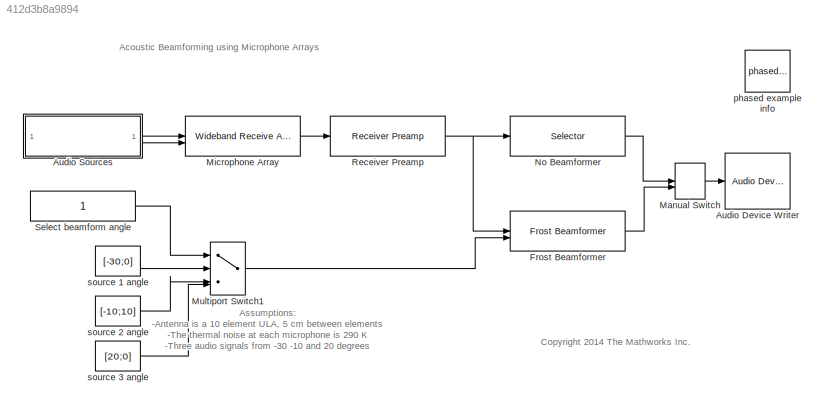
MODEL slx_412d3b8a9894
KIND model
CONFIG AbsTol = auto
CONFIG EnableMultiTasking = on
CONFIG FixedStep = auto
CONFIG MaxStep = auto
CONFIG MinStep = auto
CONFIG RelTol = 1e-3
CONFIG SampleTimeConstraint = Unconstrained
CONFIG SolverName = FixedStepDiscrete
CONFIG StartTime = 0.0
CONFIG StopTime = inf
BLOCK [Reference] Audio Device Writer  REF=dspsnks4/Audio Device
Writer
  SourceBlock = dspsnks4/Audio Device\nWriter
  SourceType = Audio Device Writer
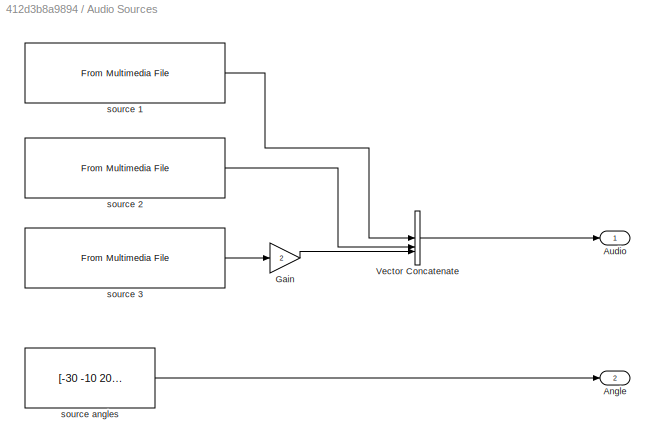
BLOCK [SubSystem] Audio Sources
BLOCK [Outport] Audio Sources/Angle
  Port = 2
  VectorParamsAs1DForOutWhenUnconnected = off
BLOCK [Outport] Audio Sources/Audio
  VectorParamsAs1DForOutWhenUnconnected = off
BLOCK [Gain] Audio Sources/Gain
  Gain = 2
BLOCK [Concatenate] Audio Sources/Vector Concatenate
  ConcatenateDimension = 2
  Mode = Multidimensional array
  NumInputs = 3
BLOCK [Reference] Audio Sources/source 1  REF=dspvision/From Multimedia File
  SourceBlock = dspvision/From Multimedia File
  SourceType = From Multimedia File
BLOCK [Reference] Audio Sources/source 2  REF=dspvision/From Multimedia File
  SourceBlock = dspvision/From Multimedia File
  SourceType = From Multimedia File
BLOCK [Reference] Audio Sources/source 3  REF=dspvision/From Multimedia File
  SourceBlock = dspvision/From Multimedia File
  SourceType = From Multimedia File
BLOCK [Constant] Audio Sources/source angles
  Value = [-30 -10 20;0 10 0]
BLOCK [Reference] Frost Beamformer  REF=phasedbflib/Frost Beamformer
  SourceBlock = phasedbflib/Frost Beamformer
  SourceType = phased.FrostBeamformer
BLOCK [ManualSwitch] Manual Switch
BLOCK [Reference] Microphone Array  REF=phasedtxrxlib/Wideband Receive Array
  SourceBlock = phasedtxrxlib/Wideband Receive Array
  SourceType = phased.WidebandCollector
BLOCK [MultiPortSwitch] Multiport Switch1
  InputSameDT = off
  SaturateOnIntegerOverflow = off
BLOCK [Selector] No Beamformer
  IndexOptions = Select all,Index vector (dialog)
  Indices = [1 3],5
  InputPortWidth = 3
  NumberOfDimensions = 2
  OutputSizes = 1,1
BLOCK [Reference] Receiver Preamp  REF=phasedtxrxlib/Receiver Preamp
  SourceBlock = phasedtxrxlib/Receiver Preamp
  SourceType = phased.internal.SimulinkReceiverPreamp
BLOCK [Constant] Select beamform angle
BLOCK [Reference] phased example info  REF=phasedmisclib/phased example info
  SourceBlock = phasedmisclib/phased example info
BLOCK [Constant] source 1 angle
  Value = [-30;0]
BLOCK [Constant] source 2 angle
  Value = [-10;10]
BLOCK [Constant] source 3 angle
  Value = [20;0]
ANNOTATION (root): Acoustic Beamforming using Microphone Arrays
ANNOTATION (root): Assumptions : -Antenna is a 10 element ULA, 5 cm between elements -The thermal noise at each microphone is 290 K -Three audio signals from -30 -10 and 20 degrees
ANNOTATION (root): <copyright redacted>
LINE Audio Sources/Gain:1 -> Audio Sources/Vector Concatenate:3
LINE Audio Sources/Vector Concatenate:1 -> Audio Sources/Audio:1
LINE Audio Sources/source 1:1 -> Audio Sources/Vector Concatenate:1
LINE Audio Sources/source 2:1 -> Audio Sources/Vector Concatenate:2
LINE Audio Sources/source 3:1 -> Audio Sources/Gain:1
LINE Audio Sources/source angles:1 -> Audio Sources/Angle:1
LINE Audio Sources:1 -> Microphone Array:1
LINE Audio Sources:2 -> Microphone Array:2
LINE Frost Beamformer:1 -> Manual Switch:2
LINE Manual Switch:1 -> Audio Device Writer:1
LINE Microphone Array:1 -> Receiver Preamp:1
LINE Multiport Switch1:1 -> Frost Beamformer:2
LINE No Beamformer:1 -> Manual Switch:1
NET Receiver Preamp:1 -> Frost Beamformer:1, No Beamformer:1
LINE Select beamform angle:1 -> Multiport Switch1:1
LINE source 1 angle:1 -> Multiport Switch1:2
LINE source 2 angle:1 -> Multiport Switch1:3
LINE source 3 angle:1 -> Multiport Switch1:4
note: NET lines group one-source signal fan-out (src -> all destinations, sorted); 1:1 wires keep LINE
